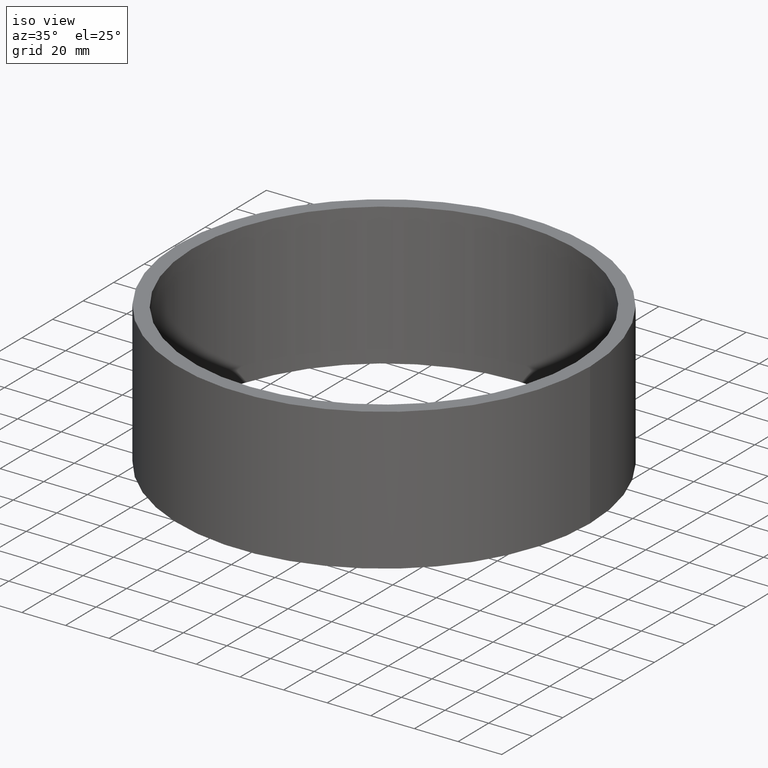
[diagram: clean part render]
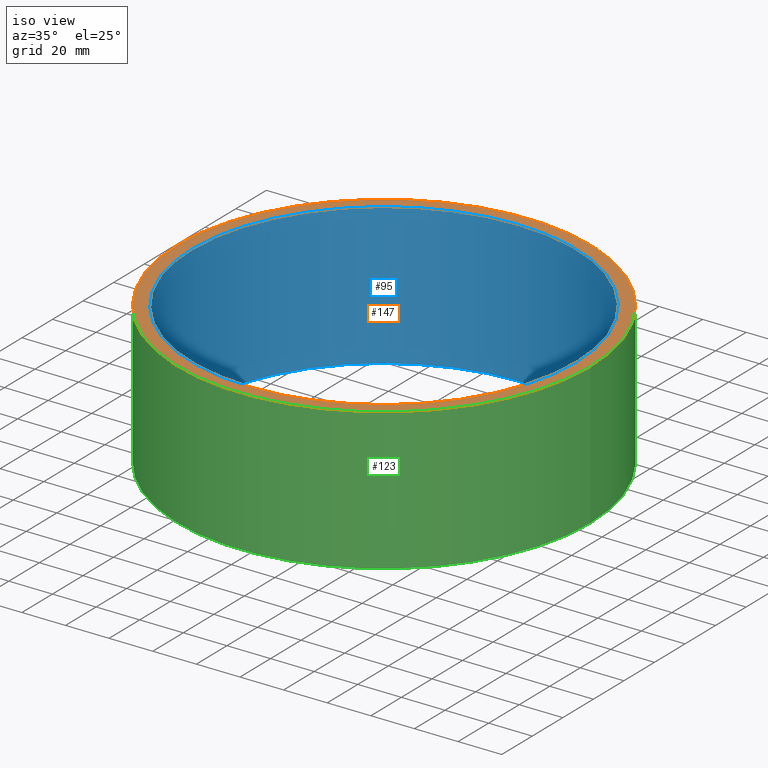
[diagram: same view with three faces highlighted in distinct colors, each labeled with its STEP entity id]
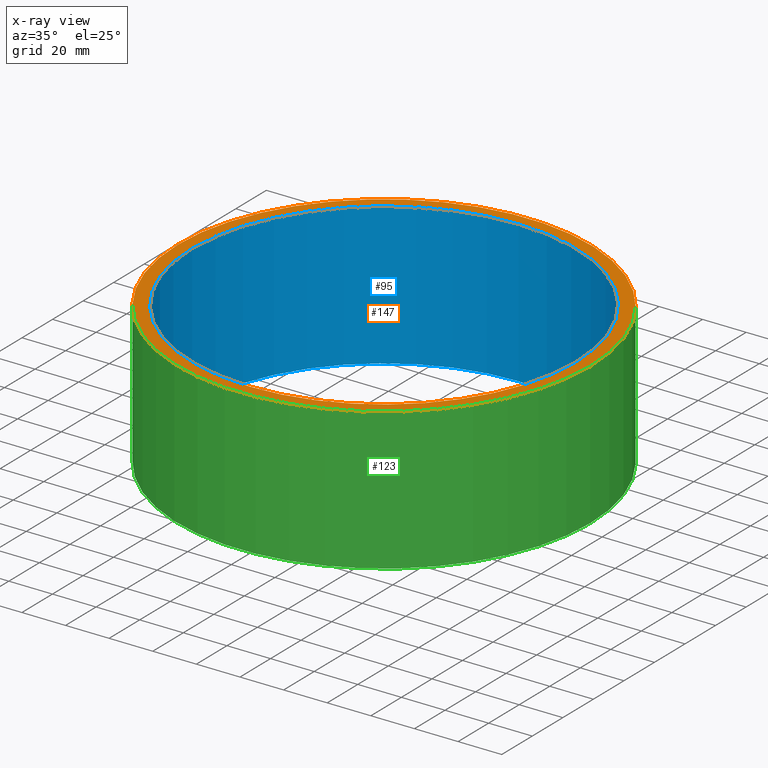
[diagram: x-ray of the same camera — body ghosted, the three highlighted faces saturated]
A machine part, iso view with three faces highlighted in distinct colors.
The next image is the same camera in x-ray (body ghosted, the three faces saturated) — at least one of them is partly hidden behind the body in this view.
Their STEP definitions:

[orange] entity #147 — the highlighted planar face has unit normal (0, 0, 1).
#84=CARTESIAN_POINT('',(88.0,0.0,0.0));
#85=VERTEX_POINT('',#84);
#86=CARTESIAN_POINT('',(0.0,0.0,0.0));
#87=DIRECTION('',(0.0,0.0,-1.0));
#88=DIRECTION('',(1.0,0.0,0.0));
#89=AXIS2_PLACEMENT_3D('',#86,#87,#88);
#90=CIRCLE('',#89,88.0);
#91=EDGE_CURVE('',#85,#85,#90,.T.);
#112=CARTESIAN_POINT('',(94.500000000000014,1.157291E-014,0.0));
#113=VERTEX_POINT('',#112);
#114=CARTESIAN_POINT('',(0.0,0.0,0.0));
#115=DIRECTION('',(0.0,0.0,-1.0));
#116=DIRECTION('',(-1.0,0.0,0.0));
#117=AXIS2_PLACEMENT_3D('',#114,#115,#116);
#118=CIRCLE('',#117,94.500000000000014);
#119=EDGE_CURVE('',#113,#113,#118,.T.);
#136=CARTESIAN_POINT('',(-3.470733E-015,1.253162E-015,0.0));
#137=DIRECTION('',(0.0,0.0,1.0));
#138=DIRECTION('',(1.0,0.0,0.0));
#139=AXIS2_PLACEMENT_3D('',#136,#137,#138);
#140=PLANE('',#139);
#141=ORIENTED_EDGE('',*,*,#119,.F.);
#142=EDGE_LOOP('',(#141));
#143=FACE_OUTER_BOUND('',#142,.T.);
#144=ORIENTED_EDGE('',*,*,#91,.T.);
#145=EDGE_LOOP('',(#144));
#146=FACE_BOUND('',#145,.T.);
#147=ADVANCED_FACE('',(#143,#146),#140,.T.);

[blue] entity #95 — the highlighted cylindrical surface (bore or boss wall) has radius 88 mm, axis along (0, 0, 1).
#68=CARTESIAN_POINT('',(0.0,0.0,-275.07635303675238));
#69=DIRECTION('',(0.0,0.0,1.0));
#70=DIRECTION('',(1.0,0.0,0.0));
#71=AXIS2_PLACEMENT_3D('',#68,#69,#70);
#72=CYLINDRICAL_SURFACE('',#71,88.0);
#73=CARTESIAN_POINT('',(-88.0,-1.077689E-014,-65.0));
#74=VERTEX_POINT('',#73);
#75=CARTESIAN_POINT('',(0.0,0.0,-65.0));
#76=DIRECTION('',(0.0,0.0,1.0));
#77=DIRECTION('',(1.0,0.0,0.0));
#78=AXIS2_PLACEMENT_3D('',#75,#76,#77);
#79=CIRCLE('',#78,88.0);
#80=EDGE_CURVE('',#74,#74,#79,.T.);
#81=ORIENTED_EDGE('',*,*,#80,.F.);
#82=EDGE_LOOP('',(#81));
#83=FACE_OUTER_BOUND('',#82,.T.);
#84=CARTESIAN_POINT('',(88.0,0.0,0.0));
#85=VERTEX_POINT('',#84);
#86=CARTESIAN_POINT('',(0.0,0.0,0.0));
#87=DIRECTION('',(0.0,0.0,-1.0));
#88=DIRECTION('',(1.0,0.0,0.0));
#89=AXIS2_PLACEMENT_3D('',#86,#87,#88);
#90=CIRCLE('',#89,88.0);
#91=EDGE_CURVE('',#85,#85,#90,.T.);
#92=ORIENTED_EDGE('',*,*,#91,.F.);
#93=EDGE_LOOP('',(#92));
#94=FACE_BOUND('',#93,.T.);
#95=ADVANCED_FACE('',(#83,#94),#72,.F.);

[green] entity #123 — the highlighted cylindrical surface (bore or boss wall) has radius 94.5 mm, axis along (0, 0, -1).
#96=CARTESIAN_POINT('',(0.0,0.0,0.0));
#97=DIRECTION('',(0.0,0.0,-1.0));
#98=DIRECTION('',(-1.0,0.0,0.0));
#99=AXIS2_PLACEMENT_3D('',#96,#97,#98);
#100=CYLINDRICAL_SURFACE('',#99,94.500000000000014);
#101=CARTESIAN_POINT('',(94.500000000000014,1.157291E-014,-65.0));
#102=VERTEX_POINT('',#101);
#103=CARTESIAN_POINT('',(0.0,0.0,-65.0));
#104=DIRECTION('',(0.0,0.0,-1.0));
#105=DIRECTION('',(-1.0,0.0,0.0));
#106=AXIS2_PLACEMENT_3D('',#103,#104,#105);
#107=CIRCLE('',#106,94.500000000000014);
#108=EDGE_CURVE('',#102,#102,#107,.T.);
#109=ORIENTED_EDGE('',*,*,#108,.F.);
#110=EDGE_LOOP('',(#109));
#111=FACE_OUTER_BOUND('',#110,.T.);
#112=CARTESIAN_POINT('',(94.500000000000014,1.157291E-014,0.0));
#113=VERTEX_POINT('',#112);
#114=CARTESIAN_POINT('',(0.0,0.0,0.0));
#115=DIRECTION('',(0.0,0.0,-1.0));
#116=DIRECTION('',(-1.0,0.0,0.0));
#117=AXIS2_PLACEMENT_3D('',#114,#115,#116);
#118=CIRCLE('',#117,94.500000000000014);
#119=EDGE_CURVE('',#113,#113,#118,.T.);
#120=ORIENTED_EDGE('',*,*,#119,.T.);
#121=EDGE_LOOP('',(#120));
#122=FACE_BOUND('',#121,.T.);
#123=ADVANCED_FACE('',(#111,#122),#100,.T.);